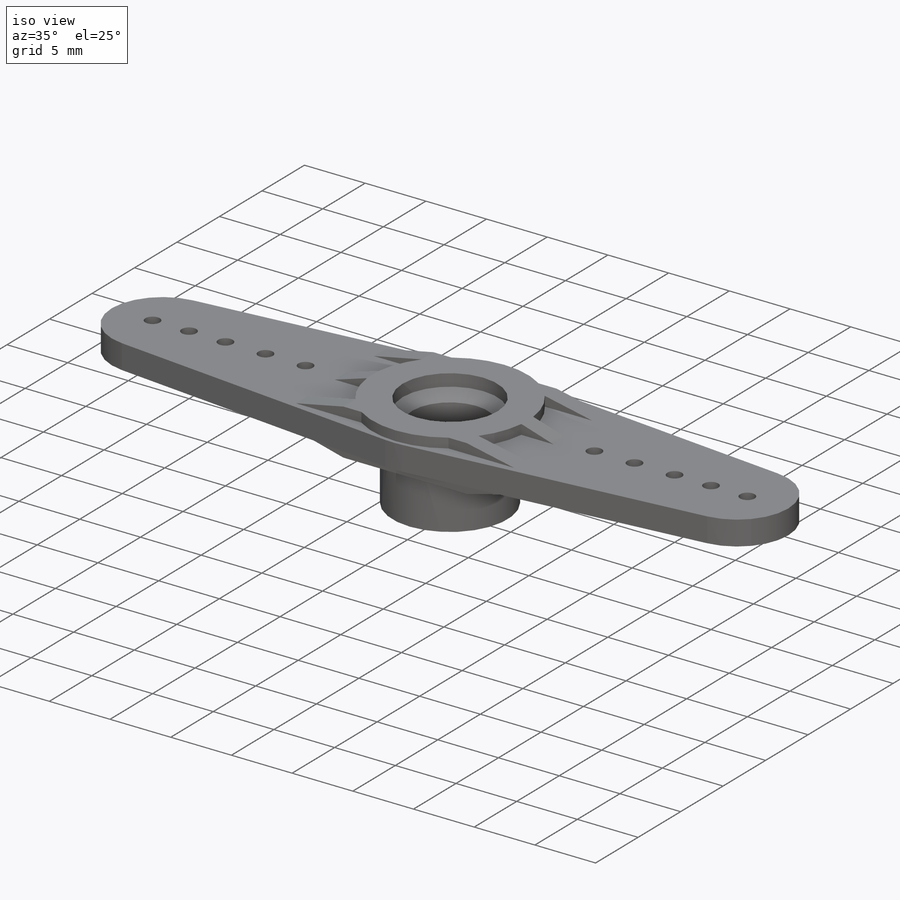
[diagram: iso view]
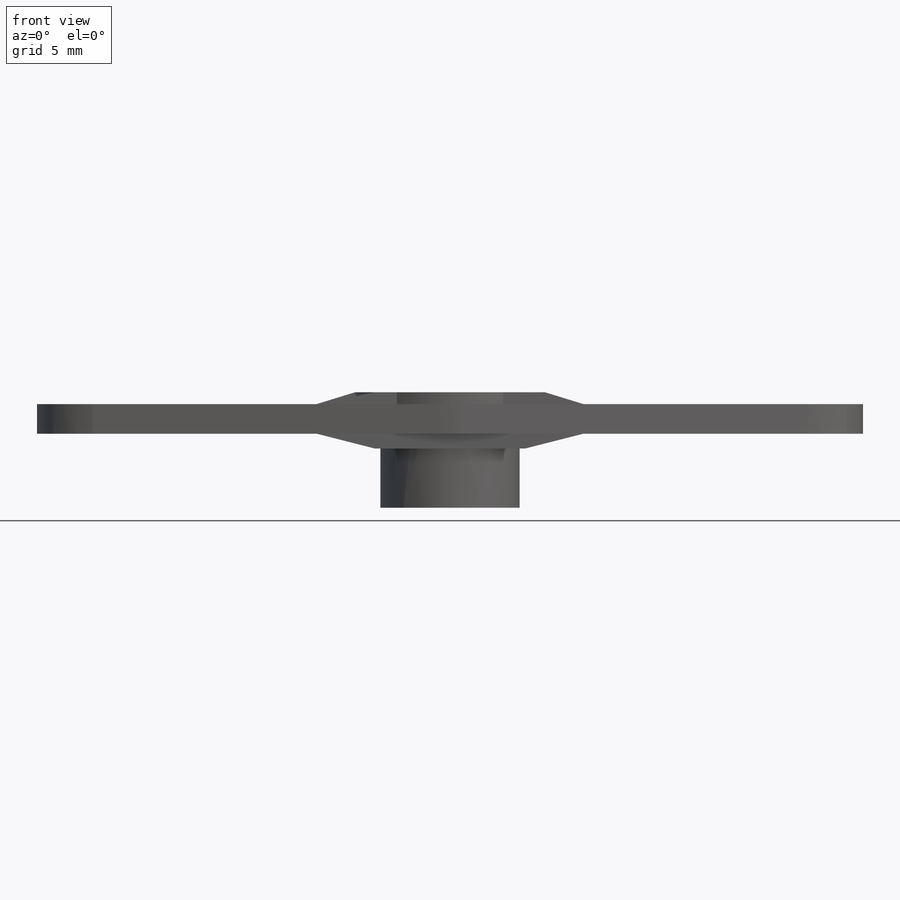
[diagram: front view]
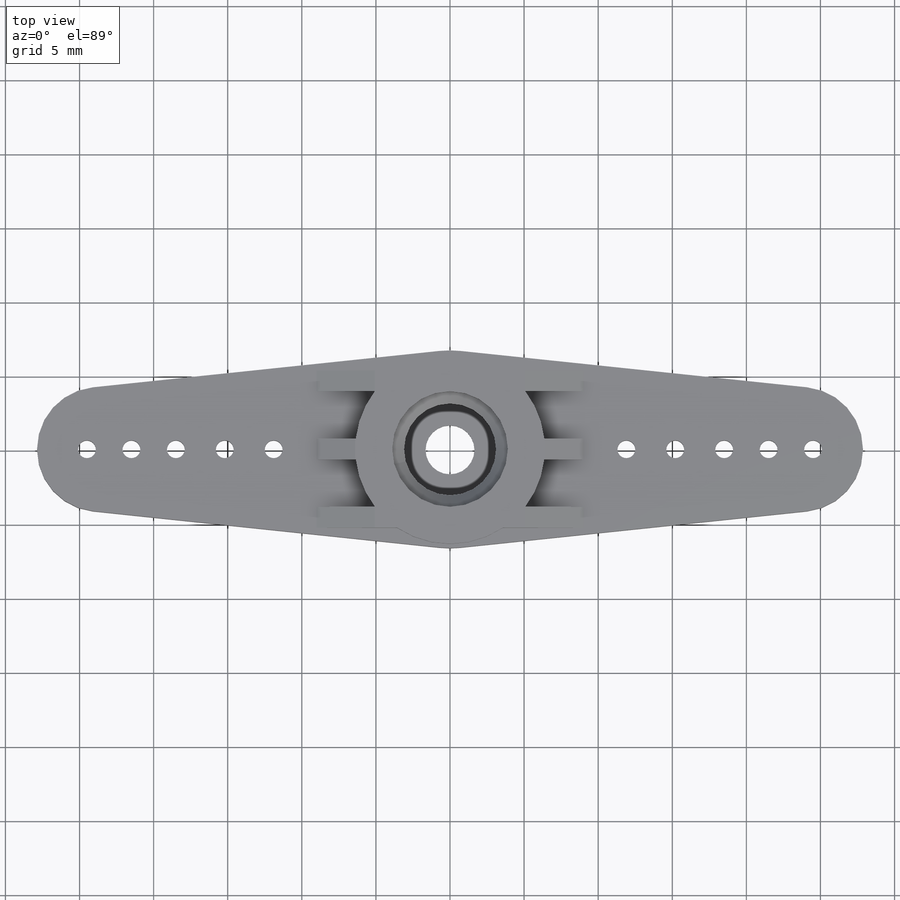
[diagram: top view]
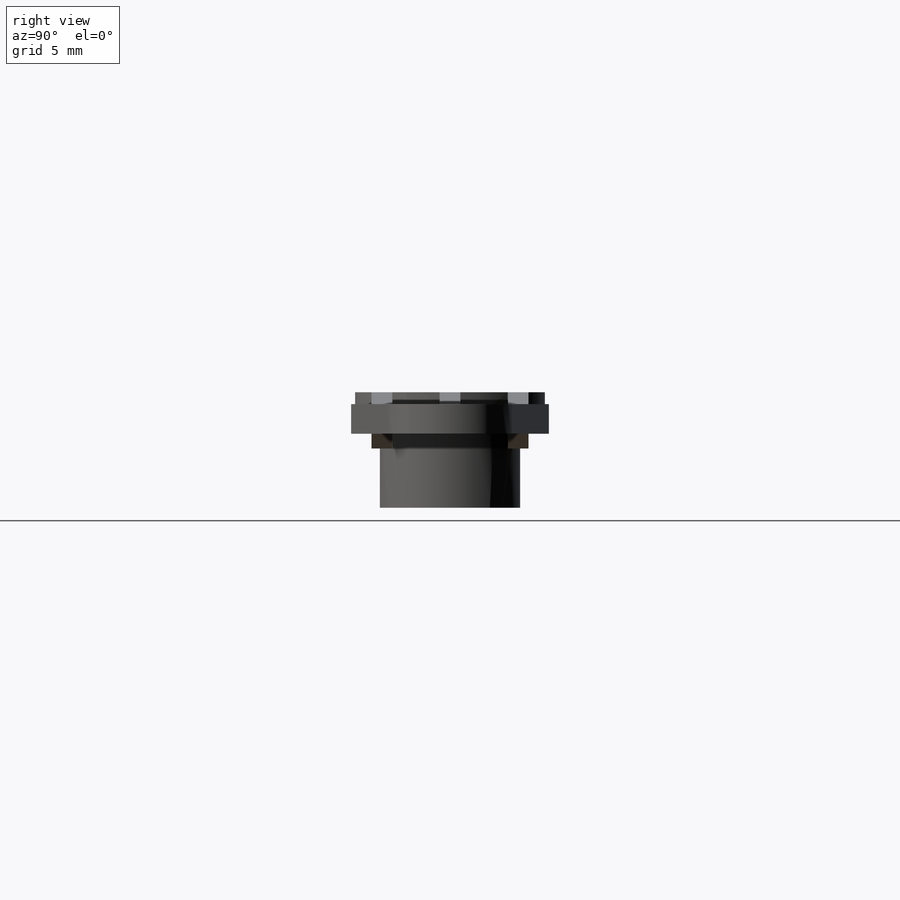
[diagram: right view]
SOLIDWORKS PART (.sldprt)
format: sldprt  version: not decoded by parser v0  size: 537,600 bytes
history: native  units: mm
features: sketch x15, cut_extrude x8, plane x4, extrude x3, material x1, revolve x1, cut_revolve x1, pattern_circular x1 (+10 scaffold rows collapsed)
feature tree (44):
  scaffold x10  (default folders/planes/origin — collapsed)
  material  "PA Type 6"
  plane  "Plan de face"
  plane  "Plan de dessus"
  plane  "Plan de droite"
  sketch  "Esquisse1"  dims[c1.D1=55.74mm c1.D2=13.34mm c1.D3=1.7mm c1.D9=9.3mm c1.D10=6.2mm c1.D11=~5.884066mm c1.D12=3.3mm c1.D7=4.1539mm c1.D5=~1.578052mm c1.D4=~1.270956mm c2.D5=1.2mm c2.D3=4.2mm c2.D7=12.8mm c2.D9=7.8mm c2.D1=50.0mm c3.D3=~54.377614mm c3.D4=3.0mm c3.D5=3.0mm c3.D6=3.0mm c3.D7=33.0mm c3.D8=~12.046202mm c4.D8=15.0deg c4.D11=0.4mm c4.D13=65.0mm c4.D3=~21.811778mm c5.D3=11.0deg c6.D3=6.4mm c6.D4=49.0mm c6.D6=3.0mm c6.D8=3.0mm c6.D13=3.3mm c6.D14=3.3mm c6.D11=~1.434872mm c6.D15=~6.264954mm c7.D11=~1.488482mm c7.D15=~2.754802mm c8.D11=1.4mm c8.D15=18.0mm c8.D16=10.6mm c8.D17=1.4mm]
  sketch  "Esquisse2"  dims[c1.D1=~14.545753mm c1.D2=~4.135324mm c2.D1=9.47mm c2.D2=3.5mm c2.D3=3.3mm c2.D4=5.6mm c2.D5=2.3mm c3.D4=2.3mm c3.D3=7.8mm c4.D4=5.0mm c4.D5=2.0mm c4.D6=~2.020124mm]
  revolve  "Révolution1"  Angle=360deg
  plane  "Plan1"
  sketch  "Esquisse3"
  extrude  "Boss.-Extru.1"  [1 undecoded]
  sketch  "Esquisse10"
  extrude  "Boss.-Extru.2"  [1 undecoded]
  sketch  "Esquisse11"  dims[D1=~2.921232mm]
  cut_extrude  "Enlèv. mat.-Extru.6"  [1 undecoded]
  sketch  "Esquisse12"  dims[D1=0.0mm D2=0.0mm]
  cut_extrude  "Enlèv. mat.-Extru.7"  [1 undecoded]
  sketch  "Esquisse13"  dims[D1=~3.392779mm]
  cut_extrude  "Enlèv. mat.-Extru.8"  Depth=2mm
  sketch  "Esquisse4"
  cut_extrude  "Enlèv. mat.-Extru.1"  Depth=3.3mm
  sketch  "Esquisse14"  dims[c1.D1=~1.333658mm c2.D1=45.0deg c2.D2=1.0mm]
  cut_revolve  "Enlèvement de matière-Révolution1"  Angle=360deg
  sketch  "Esquisse15"  dims[c1.D1=3.1933mm c1.D2=~15.062737mm c2.D1=~3.619067mm]
  extrude  "Boss.-Extru.3"  Depth=4mm
  sketch  "Esquisse16"  dims[D1=~2.112047mm]
  cut_extrude  "Enlèv. mat.-Extru.9"  [1 undecoded]
  sketch  "Esquisse6"
  cut_extrude  "Enlèv. mat.-Extru.3"  [1 undecoded]
  sketch  "Esquisse7"  dims[c1.D2=6.0mm c1.D7=~0.073448mm c1.D1=~0.372785mm c2.D1=45.6deg c2.D3=~0.253326mm c2.D4=0.5mm c2.D5=~2.703448mm c3.D5=7.2deg c3.D6=~0.372785mm c4.D6=60.0deg c4.D7=0.37mm]
  sketch  "Esquisse8"  dims[D1=0.05mm]
  cut_extrude  "Enlèv. mat.-Extru.4"  [1 undecoded]
  sketch  "Esquisse9"  dims[D2=0.05mm D3=~0.245635mm D1=0.0mm]
  cut_extrude  "Enlèv. mat.-Extru.5"  [1 undecoded]
  pattern_circular  "Répétition circulaire1"  Count=25 Angle=360deg
decode coverage: 17 of 29 modeling features carry decoded parameters
note: ~ marks probable driven/reference dimensions
note: 8 parameter values undecoded
summary: no parameter record found for 8 features
note: suppression state not decoded; provenance and decode notes live in map.json
